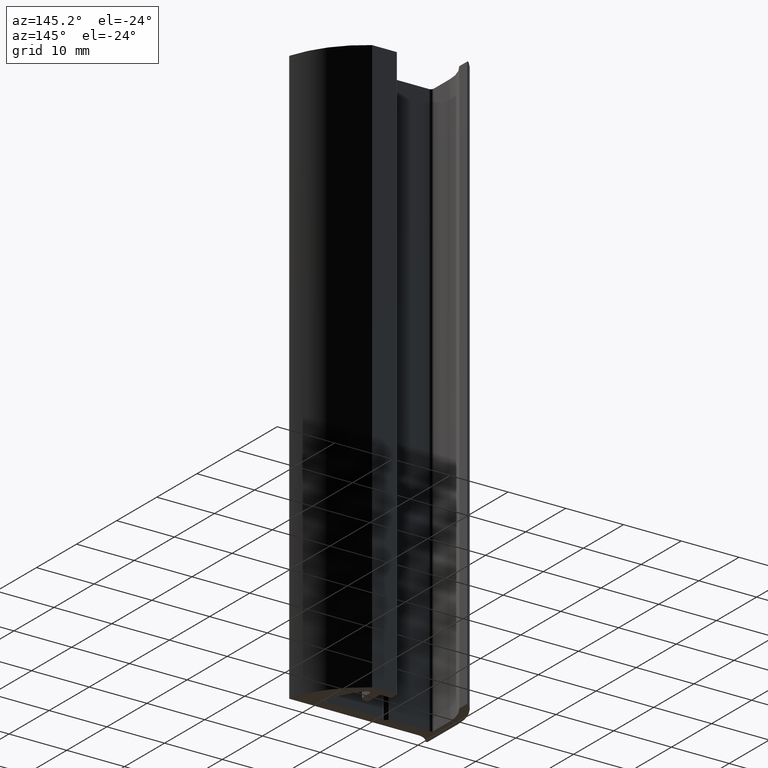
[diagram: clean part render]
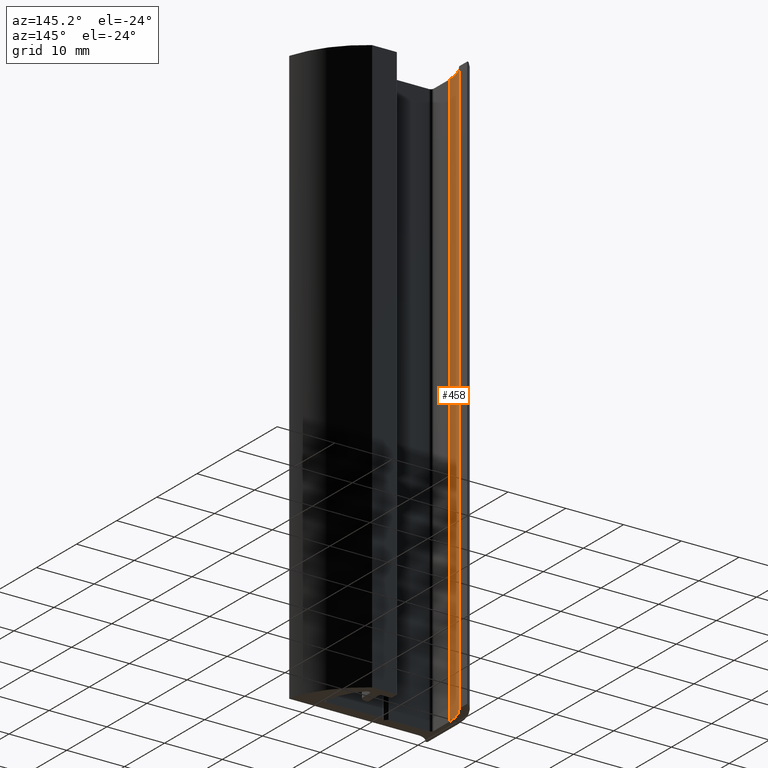
[diagram: same view with one face highlighted and labeled with its STEP entity id]
A machine part, auxiliary view. The second image highlights one B-rep face of the part: STEP entity #458.
In plain terms, the highlighted cylindrical surface (partial cylindrical patch) has radius 7.5 mm, axis along (0, 0, -1).
Its self-contained STEP definition (entity closure, byte-faithful):
#400=CARTESIAN_POINT('',(-0.999999999979309,6.500000000021259,0.0));
#401=VERTEX_POINT('',#400);
#408=CARTESIAN_POINT('',(-0.999999999979309,6.500000000021259,100.0));
#409=VERTEX_POINT('',#408);
#410=CARTESIAN_POINT('',(-0.999999999979309,6.500000000021259,0.0));
#411=DIRECTION('',(0.0,0.0,1.0));
#412=VECTOR('',#411,100.0);
#413=LINE('',#410,#412);
#414=EDGE_CURVE('',#401,#409,#413,.T.);
#426=CARTESIAN_POINT('',(6.500000000020691,6.500000000021259,0.0));
#427=DIRECTION('',(0.0,0.0,-1.0));
#428=DIRECTION('',(-1.0,1.665335E-016,0.0));
#429=AXIS2_PLACEMENT_3D('',#426,#427,#428);
#430=CYLINDRICAL_SURFACE('',#429,7.500000000000068);
#431=CARTESIAN_POINT('',(0.500000000014552,11.000000000013188,0.0));
#432=VERTEX_POINT('',#431);
#433=CARTESIAN_POINT('',(6.500000000020691,6.500000000021259,0.0));
#434=DIRECTION('',(0.0,0.0,-1.0));
#435=DIRECTION('',(-0.800000000000811,0.599999999998918,0.0));
#436=AXIS2_PLACEMENT_3D('',#433,#434,#435);
#437=CIRCLE('',#436,7.500000000000068);
#438=EDGE_CURVE('',#401,#432,#437,.T.);
#439=ORIENTED_EDGE('',*,*,#438,.T.);
#440=CARTESIAN_POINT('',(0.500000000014552,11.000000000013188,100.0));
#441=VERTEX_POINT('',#440);
#442=CARTESIAN_POINT('',(0.500000000014552,11.000000000013188,0.0));
#443=DIRECTION('',(0.0,0.0,1.0));
#444=VECTOR('',#443,100.0);
#445=LINE('',#442,#444);
#446=EDGE_CURVE('',#432,#441,#445,.T.);
#447=ORIENTED_EDGE('',*,*,#446,.T.);
#448=CARTESIAN_POINT('',(6.500000000020691,6.500000000021259,100.0));
#449=DIRECTION('',(0.0,0.0,-1.0));
#450=DIRECTION('',(-0.800000000000811,0.599999999998918,0.0));
#451=AXIS2_PLACEMENT_3D('',#448,#449,#450);
#452=CIRCLE('',#451,7.500000000000068);
#453=EDGE_CURVE('',#409,#441,#452,.T.);
#454=ORIENTED_EDGE('',*,*,#453,.F.);
#455=ORIENTED_EDGE('',*,*,#414,.F.);
#456=EDGE_LOOP('',(#439,#447,#454,#455));
#457=FACE_OUTER_BOUND('',#456,.T.);
#458=ADVANCED_FACE('',(#457),#430,.F.);